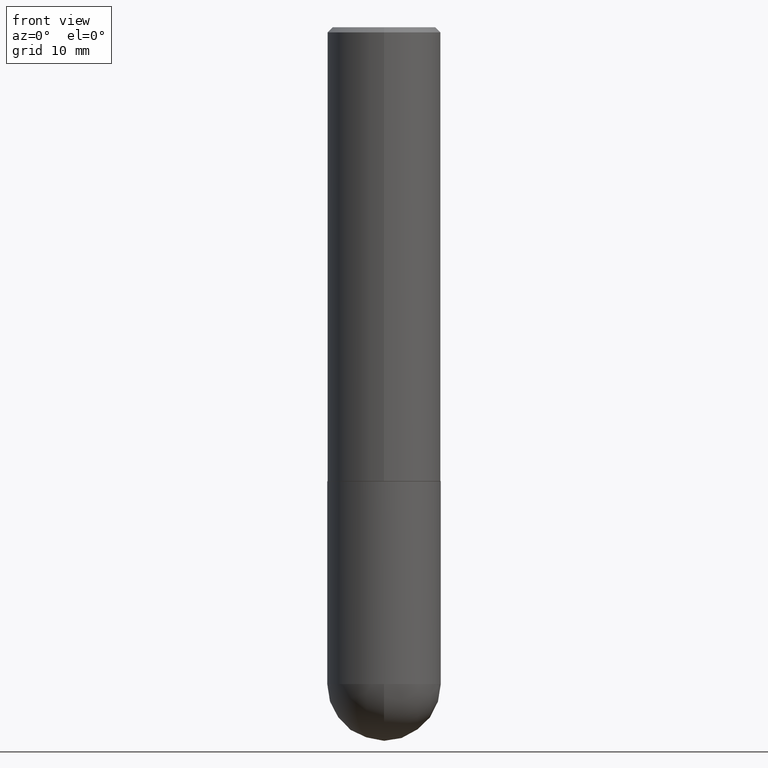
[diagram: clean part render]
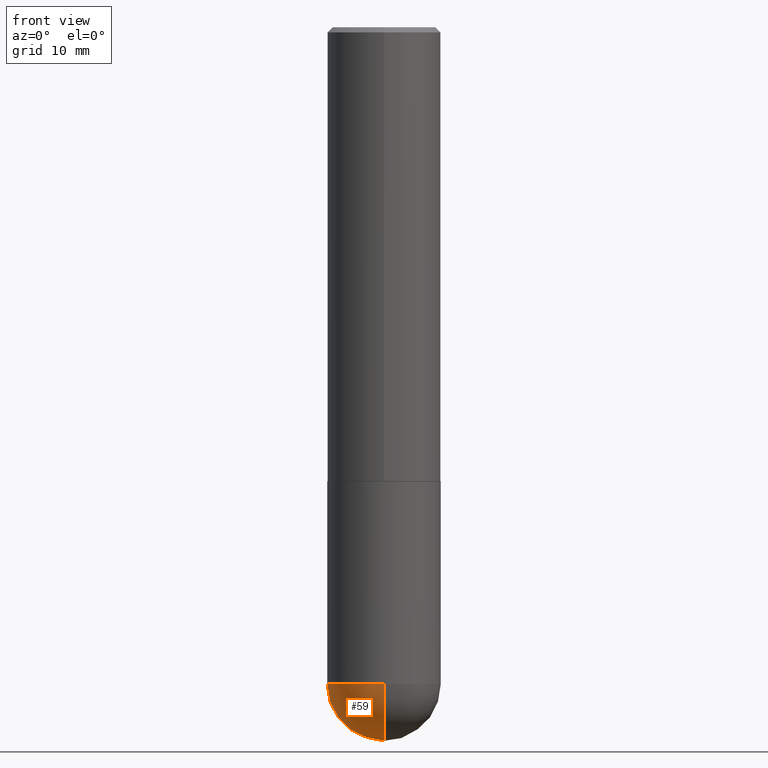
[diagram: same view with one face highlighted and labeled with its STEP entity id]
A machine part, front view. The second image highlights one B-rep face of the part: STEP entity #59.
In plain terms, the highlighted spherical surface has radius 5.5563 mm.
Its self-contained STEP definition (entity closure, byte-faithful):
#25 = DIRECTION ( 'NONE',  ( 1.000000000000000000, -6.982962677686265133E-15, 0.000000000000000000 ) ) ;
#32 = DIRECTION ( 'NONE',  ( -1.000000000000000000, 7.105427357601001070E-15, -4.926315508542082329E-29 ) ) ;
#35 = AXIS2_PLACEMENT_3D ( 'NONE', #412, #312, #352 ) ;
#36 = AXIS2_PLACEMENT_3D ( 'NONE', #304, #332, #207 ) ;
#43 = ORIENTED_EDGE ( 'NONE', *, *, #180, .T. ) ;
#52 = DIRECTION ( 'NONE',  ( -2.445468806185136597E-29, 3.491481338843145583E-15, 1.000000000000000000 ) ) ;
#59 = ADVANCED_FACE ( 'NONE', ( #351 ), #409, .T. ) ;
#67 = VERTEX_POINT ( 'NONE', #240 ) ;
#97 = VERTEX_POINT ( 'NONE', #374 ) ;
#100 = ORIENTED_EDGE ( 'NONE', *, *, #403, .F. ) ;
#105 = AXIS2_PLACEMENT_3D ( 'NONE', #315, #32, #158 ) ;
#110 = EDGE_CURVE ( 'NONE', #254, #268, #301, .T. ) ;
#146 = DIRECTION ( 'NONE',  ( 1.000000000000000000, -6.982962677686265922E-15, 4.883557194083112340E-29 ) ) ;
#158 = DIRECTION ( 'NONE',  ( -7.105427357601001070E-15, -1.000000000000000000, 0.000000000000000000 ) ) ;
#172 = ORIENTED_EDGE ( 'NONE', *, *, #110, .F. ) ;
#180 = EDGE_CURVE ( 'NONE', #97, #268, #383, .T. ) ;
#191 = CIRCLE ( 'NONE', #36, 0.2187499999999999445 ) ;
#199 = DIRECTION ( 'NONE',  ( 6.982962677686265922E-15, 1.000000000000000000, 0.000000000000000000 ) ) ;
#202 = ORIENTED_EDGE ( 'NONE', *, *, #379, .F. ) ;
#207 = DIRECTION ( 'NONE',  ( 1.000000000000000000, -6.982962677686265133E-15, 0.000000000000000000 ) ) ;
#216 = CARTESIAN_POINT ( 'NONE',  ( 6.190092915656127011E-29, -8.837812138946710888E-15, -2.531250000000000000 ) ) ;
#232 = CARTESIAN_POINT ( 'NONE',  ( -1.554312234475159203E-15, -0.2187500000000091871, -2.531249999999999556 ) ) ;
#240 = CARTESIAN_POINT ( 'NONE',  ( 1.527523085743931191E-15, 0.2187499999999910072, -2.531250000000000444 ) ) ;
#254 = VERTEX_POINT ( 'NONE', #270 ) ;
#262 = EDGE_LOOP ( 'NONE', ( #202, #43, #172, #100 ) ) ;
#268 = VERTEX_POINT ( 'NONE', #232 ) ;
#270 = CARTESIAN_POINT ( 'NONE',  ( -0.2187499999999999445, -5.919640006485891384E-15, -2.531250000000000000 ) ) ;
#277 = CIRCLE ( 'NONE', #287, 0.2187500000000001943 ) ;
#287 = AXIS2_PLACEMENT_3D ( 'NONE', #394, #146, #199 ) ;
#301 = CIRCLE ( 'NONE', #357, 0.2187499999999999445 ) ;
#304 = CARTESIAN_POINT ( 'NONE',  ( 6.190092915656127011E-29, -8.837812138946710888E-15, -2.531250000000000000 ) ) ;
#312 = DIRECTION ( 'NONE',  ( -1.000000000000000000, 6.982962677686265922E-15, -4.883557194083112340E-29 ) ) ;
#315 = CARTESIAN_POINT ( 'NONE',  ( 5.858973137742240763E-29, -9.311994507086761184E-15, -2.531250000000000000 ) ) ;
#332 = DIRECTION ( 'NONE',  ( -2.445468806185136597E-29, 3.491481338843145583E-15, 1.000000000000000000 ) ) ;
#351 = FACE_OUTER_BOUND ( 'NONE', #262, .T. ) ;
#352 = DIRECTION ( 'NONE',  ( 6.982962677686265922E-15, 1.000000000000000000, -2.497689594207324005E-15 ) ) ;
#357 = AXIS2_PLACEMENT_3D ( 'NONE', #216, #52, #25 ) ;
#374 = CARTESIAN_POINT ( 'NONE',  ( 6.403272820383139972E-29, -1.006236147559302482E-14, -2.750000000000000000 ) ) ;
#379 = EDGE_CURVE ( 'NONE', #97, #67, #277, .T. ) ;
#383 = CIRCLE ( 'NONE', #105, 0.2187500000000001943 ) ;
#394 = CARTESIAN_POINT ( 'NONE',  ( 5.858973137742240763E-29, -9.311994507086761184E-15, -2.531250000000000000 ) ) ;
#403 = EDGE_CURVE ( 'NONE', #67, #254, #191, .T. ) ;
#409 = SPHERICAL_SURFACE ( 'NONE', #35, 0.2187500000000001943 ) ;
#412 = CARTESIAN_POINT ( 'NONE',  ( 5.858973137742240763E-29, -9.311994507086761184E-15, -2.531250000000000000 ) ) ;